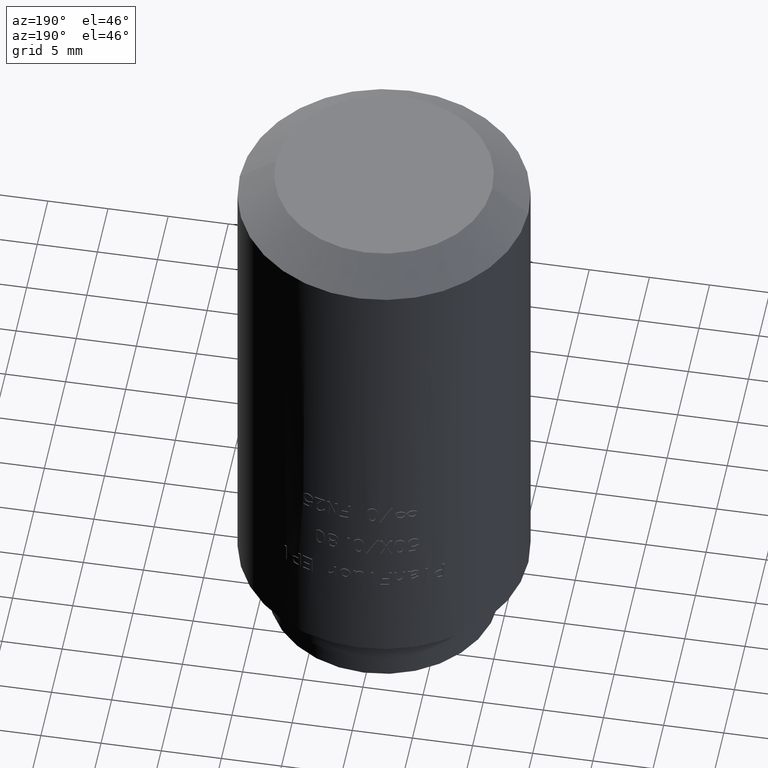
[diagram: clean part render]
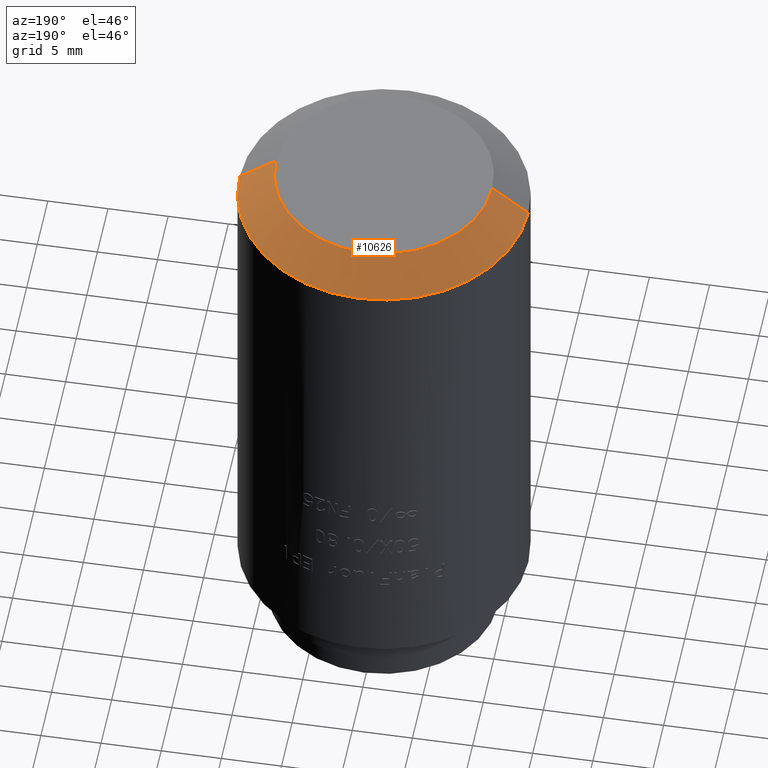
[diagram: same view with one face highlighted and labeled with its STEP entity id]
A machine part, auxiliary view. The second image highlights one B-rep face of the part: STEP entity #10626.
In plain terms, the highlighted conical surface has half-angle 51.927 deg.
Its self-contained STEP definition (entity closure, byte-faithful):
#113 = DIRECTION ( 'NONE',  ( 1.000000000000000000, 0.000000000000000000, 0.000000000000000000 ) ) ;
#896 = AXIS2_PLACEMENT_3D ( 'NONE', #23624, #6178, #10128 ) ;
#3610 = EDGE_CURVE ( 'NONE', #4597, #6571, #5604, .T. ) ;
#3773 = VERTEX_POINT ( 'NONE', #5329 ) ;
#4597 = VERTEX_POINT ( 'NONE', #17533 ) ;
#5329 = CARTESIAN_POINT ( 'NONE',  ( -9.000000000000000000, 0.000000000000000000, 49.29999999999999716 ) ) ;
#5604 = LINE ( 'NONE', #24717, #12407 ) ;
#6178 = DIRECTION ( 'NONE',  ( 0.000000000000000000, 0.000000000000000000, -1.000000000000000000 ) ) ;
#6251 = EDGE_CURVE ( 'NONE', #16338, #6571, #6326, .T. ) ;
#6326 = CIRCLE ( 'NONE', #23815, 12.00000000000000000 ) ;
#6571 = VERTEX_POINT ( 'NONE', #18698 ) ;
#9043 = EDGE_CURVE ( 'NONE', #3773, #16338, #21079, .T. ) ;
#9794 = CARTESIAN_POINT ( 'NONE',  ( 0.000000000000000000, 0.000000000000000000, 46.94999999999999574 ) ) ;
#10128 = DIRECTION ( 'NONE',  ( -1.000000000000000000, 0.000000000000000000, 0.000000000000000000 ) ) ;
#10626 = ADVANCED_FACE ( 'NONE', ( #23244 ), #20013, .T. ) ;
#10734 = CARTESIAN_POINT ( 'NONE',  ( -12.00000000000000000, 0.000000000000000000, 46.94999999999999574 ) ) ;
#11524 = CARTESIAN_POINT ( 'NONE',  ( -9.000000000000000000, 0.000000000000000000, 49.29999999999999716 ) ) ;
#11963 = ORIENTED_EDGE ( 'NONE', *, *, #3610, .T. ) ;
#12407 = VECTOR ( 'NONE', #19103, 1000.000000000000114 ) ;
#12576 = ORIENTED_EDGE ( 'NONE', *, *, #6251, .F. ) ;
#12828 = AXIS2_PLACEMENT_3D ( 'NONE', #20305, #19803, #24009 ) ;
#13488 = VECTOR ( 'NONE', #17262, 1000.000000000000114 ) ;
#13749 = EDGE_LOOP ( 'NONE', ( #23420, #11963, #12576, #22775 ) ) ;
#16338 = VERTEX_POINT ( 'NONE', #10734 ) ;
#17262 = DIRECTION ( 'NONE',  ( -0.7872280535289889469, 0.000000000000000000, -0.6166619752643738295 ) ) ;
#17293 = CIRCLE ( 'NONE', #12828, 9.000000000000000000 ) ;
#17533 = CARTESIAN_POINT ( 'NONE',  ( 9.000000000000000000, 1.285879139104720633E-15, 49.29999999999999716 ) ) ;
#17561 = DIRECTION ( 'NONE',  ( 0.000000000000000000, 0.000000000000000000, -1.000000000000000000 ) ) ;
#18698 = CARTESIAN_POINT ( 'NONE',  ( 12.00000000000000000, 1.469576158976823947E-15, 46.94999999999999574 ) ) ;
#19103 = DIRECTION ( 'NONE',  ( 0.7872280535289889469, 9.640763159532773675E-17, -0.6166619752643738295 ) ) ;
#19803 = DIRECTION ( 'NONE',  ( 0.000000000000000000, 0.000000000000000000, 1.000000000000000000 ) ) ;
#20013 = CONICAL_SURFACE ( 'NONE', #896, 9.000000000000000000, 0.9063009277001402575 ) ;
#20305 = CARTESIAN_POINT ( 'NONE',  ( 0.000000000000000000, 0.000000000000000000, 49.29999999999999716 ) ) ;
#21048 = EDGE_CURVE ( 'NONE', #4597, #3773, #17293, .T. ) ;
#21079 = LINE ( 'NONE', #11524, #13488 ) ;
#22775 = ORIENTED_EDGE ( 'NONE', *, *, #9043, .F. ) ;
#23244 = FACE_OUTER_BOUND ( 'NONE', #13749, .T. ) ;
#23420 = ORIENTED_EDGE ( 'NONE', *, *, #21048, .F. ) ;
#23624 = CARTESIAN_POINT ( 'NONE',  ( 0.000000000000000000, 0.000000000000000000, 49.29999999999999716 ) ) ;
#23815 = AXIS2_PLACEMENT_3D ( 'NONE', #9794, #17561, #113 ) ;
#24009 = DIRECTION ( 'NONE',  ( 1.000000000000000000, 0.000000000000000000, 0.000000000000000000 ) ) ;
#24717 = CARTESIAN_POINT ( 'NONE',  ( 9.000000000000000000, 1.102182119232617714E-15, 49.29999999999999716 ) ) ;